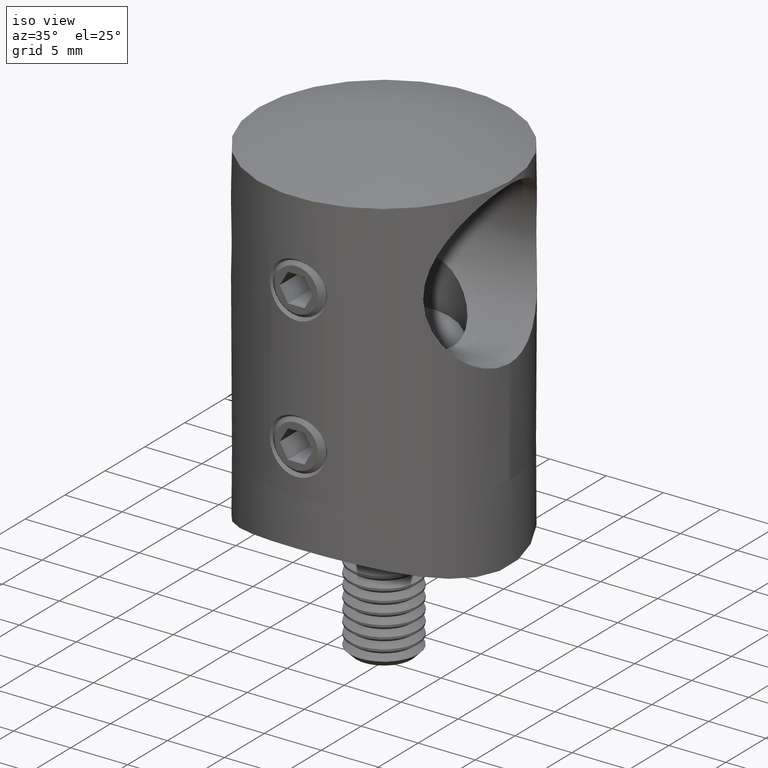
[diagram: clean part render]
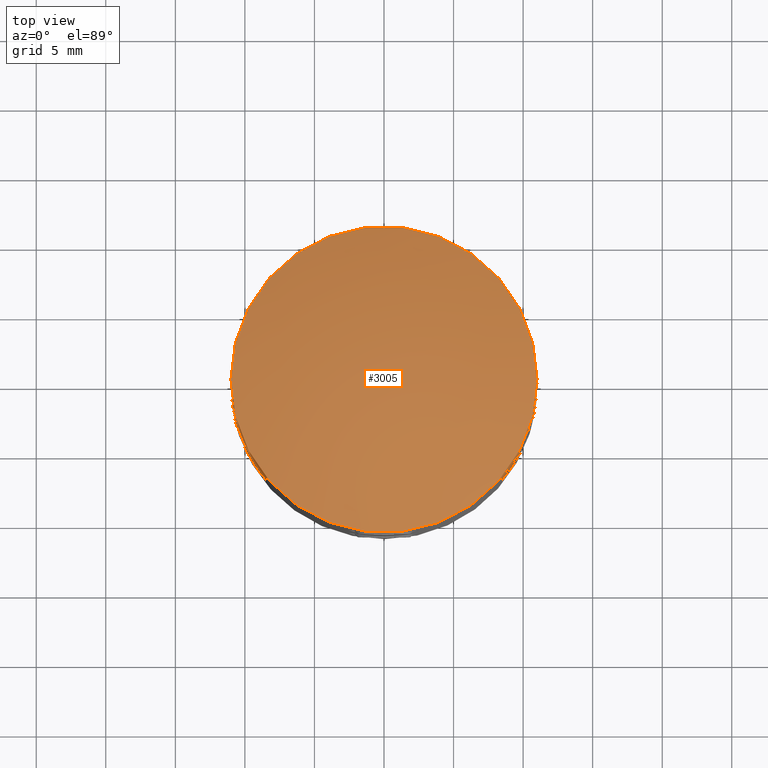
[diagram: tour spotlight — one face highlighted and labeled with its STEP entity id]
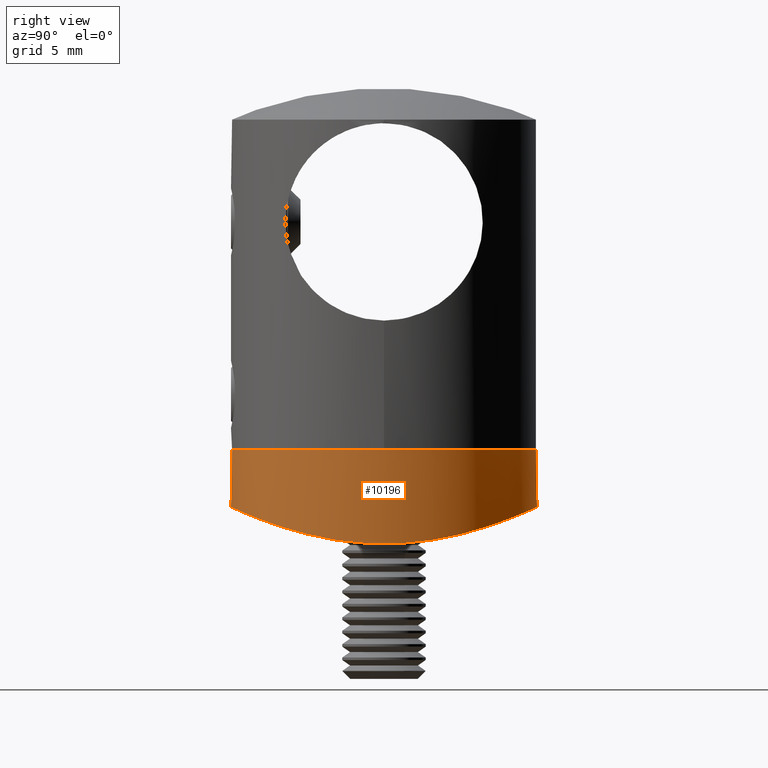
[diagram: tour spotlight — one face highlighted and labeled with its STEP entity id]
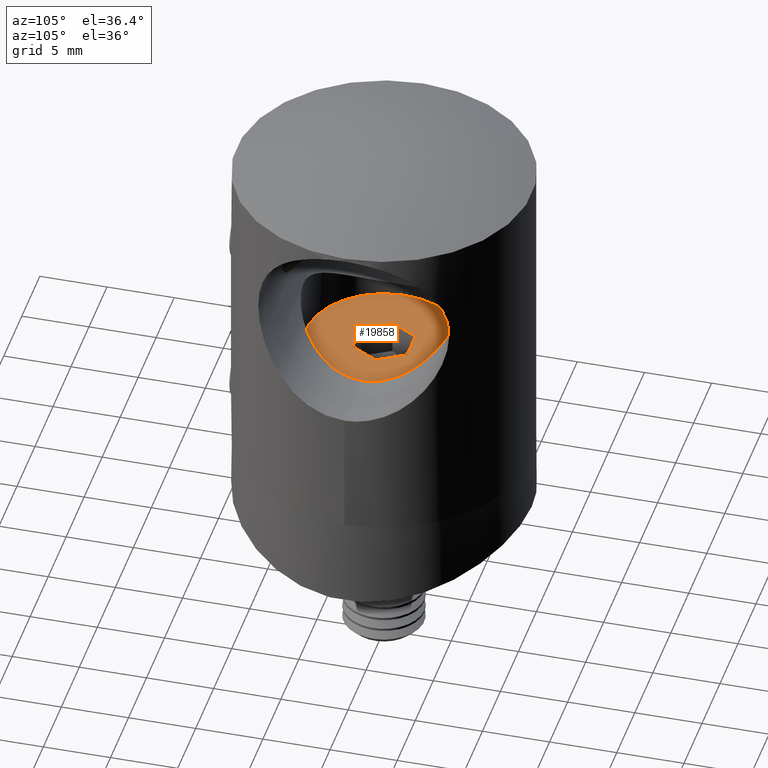
[diagram: tour spotlight — one face highlighted and labeled with its STEP entity id]
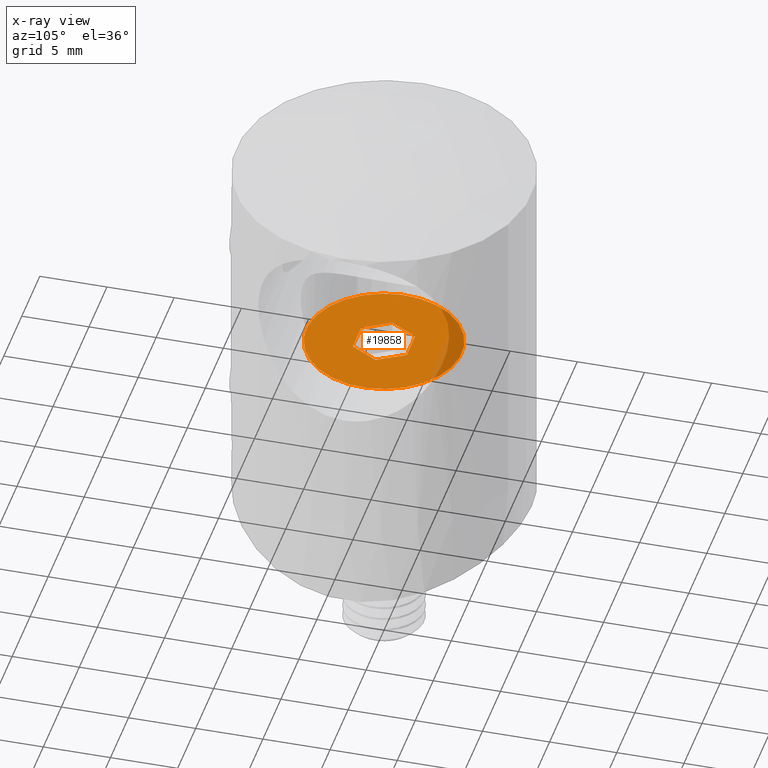
[diagram: x-ray of the same camera — body ghosted, this tour face saturated]
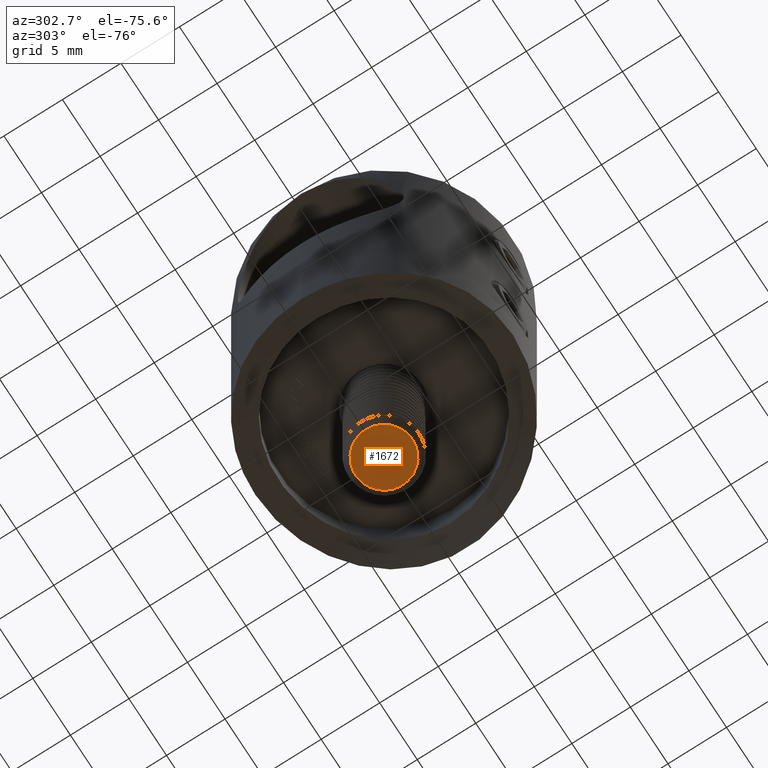
[diagram: tour spotlight — one face highlighted and labeled with its STEP entity id]
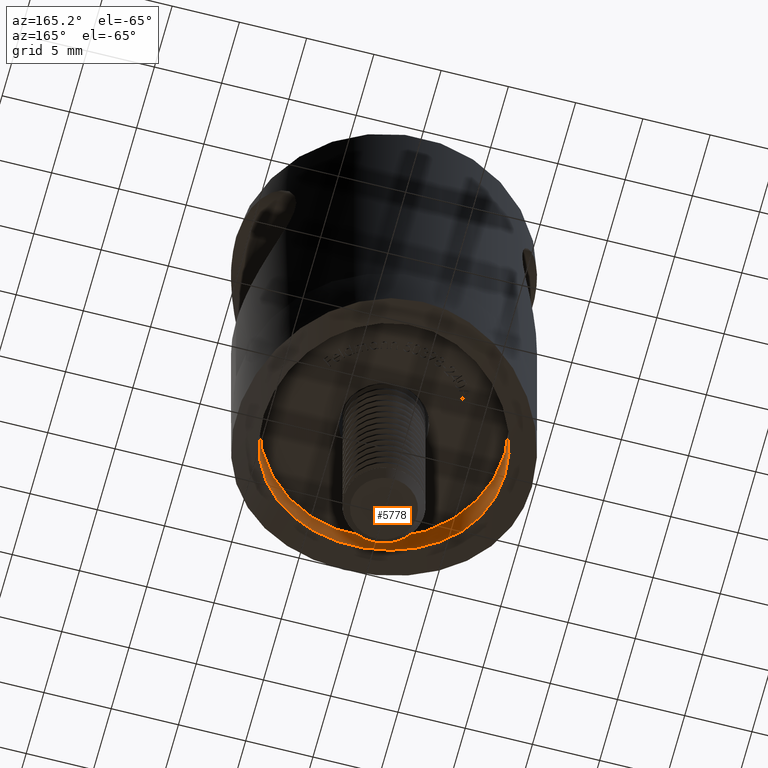
[diagram: tour spotlight — one face highlighted and labeled with its STEP entity id]
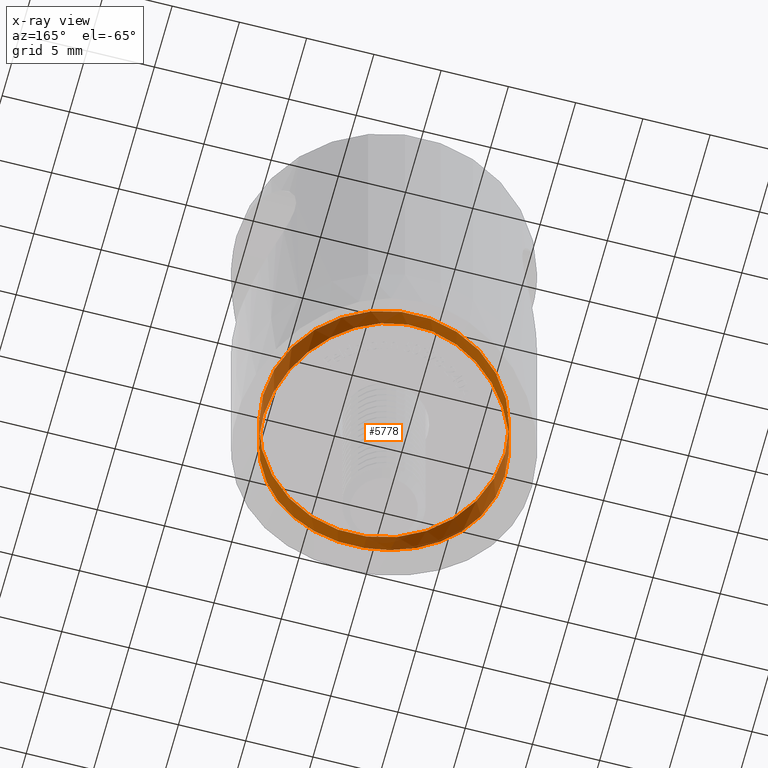
[diagram: x-ray of the same camera — body ghosted, this tour face saturated]
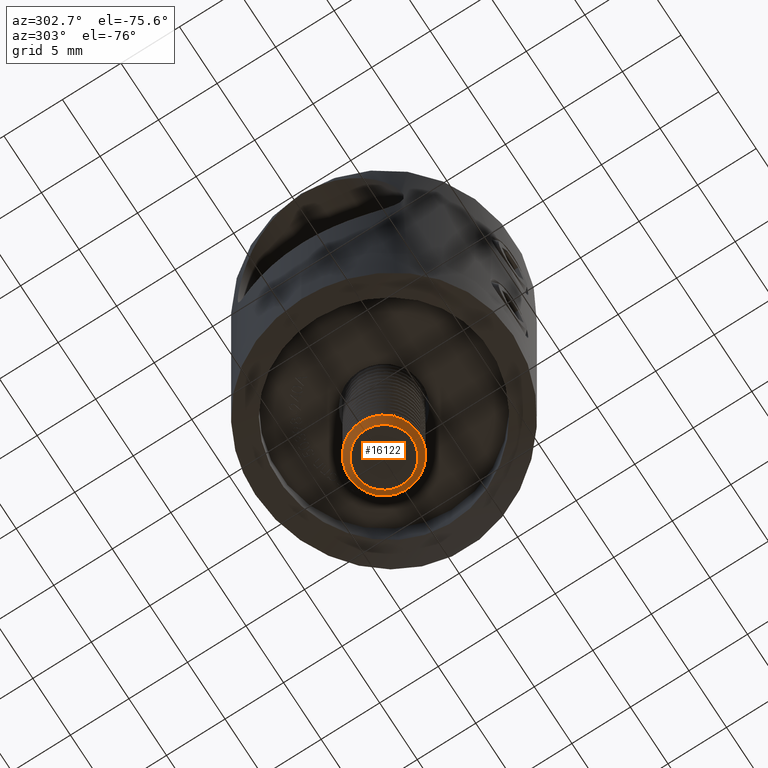
[diagram: tour spotlight — one face highlighted and labeled with its STEP entity id]
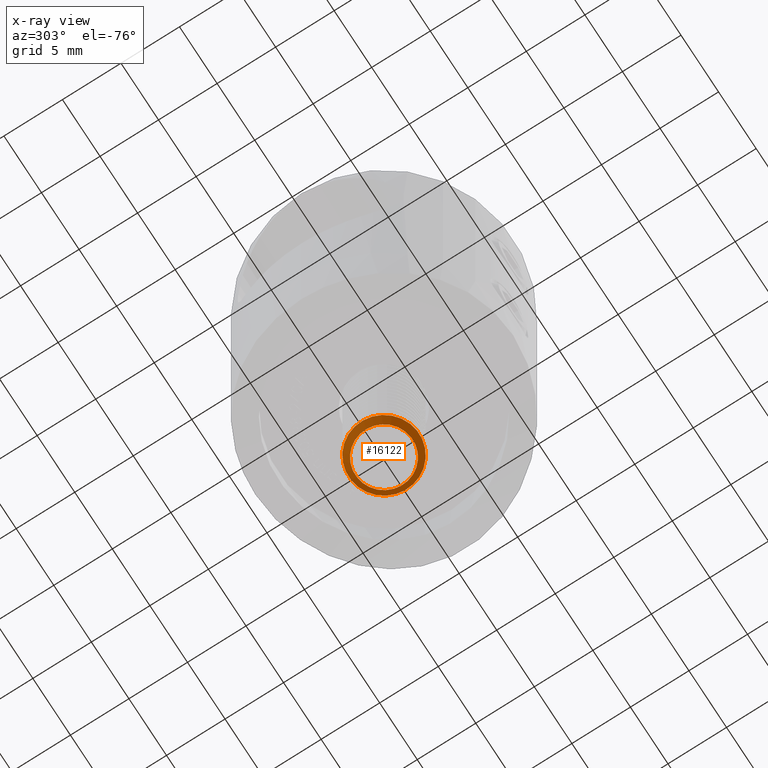
[diagram: x-ray of the same camera — body ghosted, this tour face saturated]
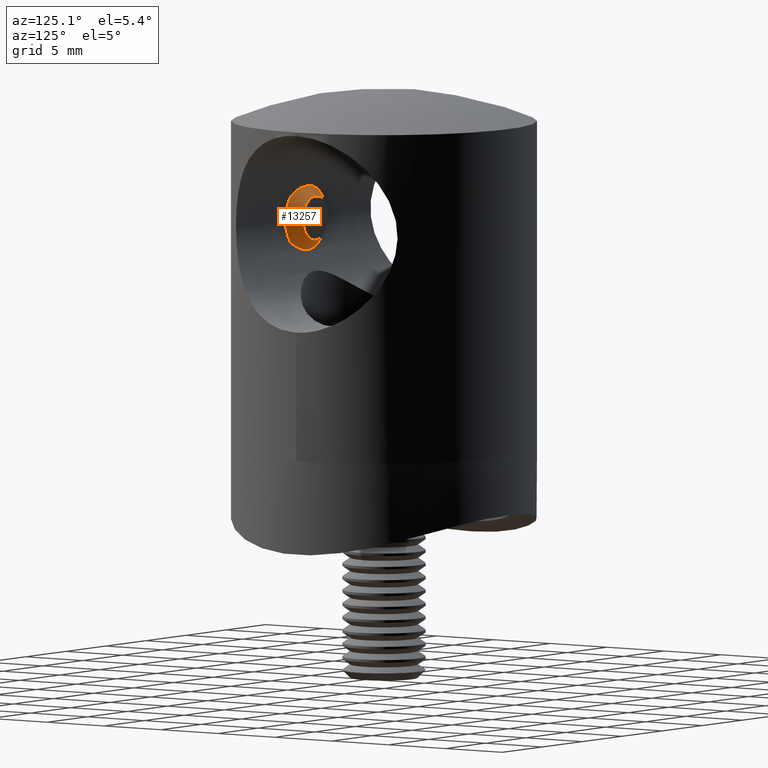
[diagram: tour spotlight — one face highlighted and labeled with its STEP entity id]
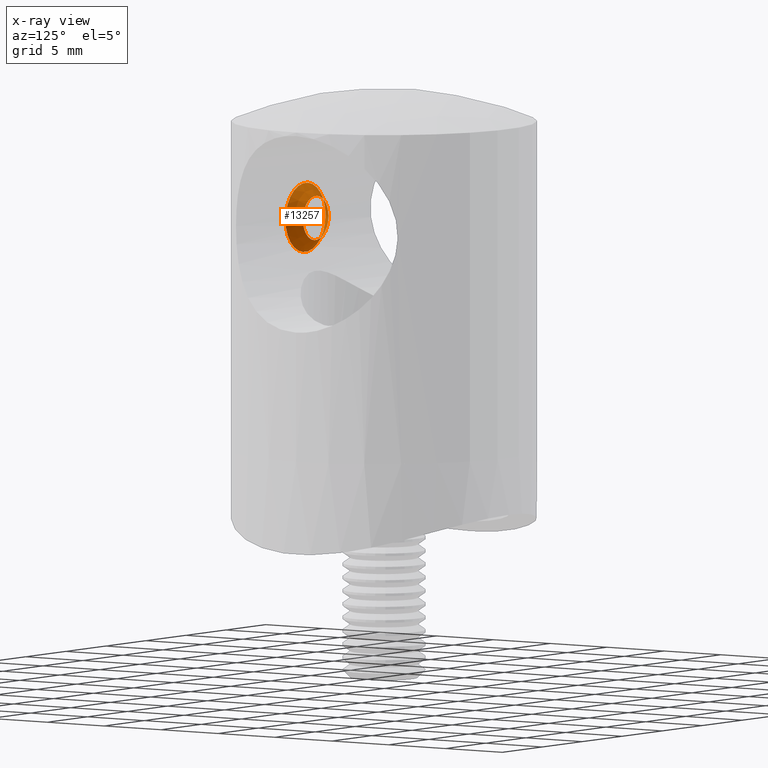
[diagram: x-ray of the same camera — body ghosted, this tour face saturated]
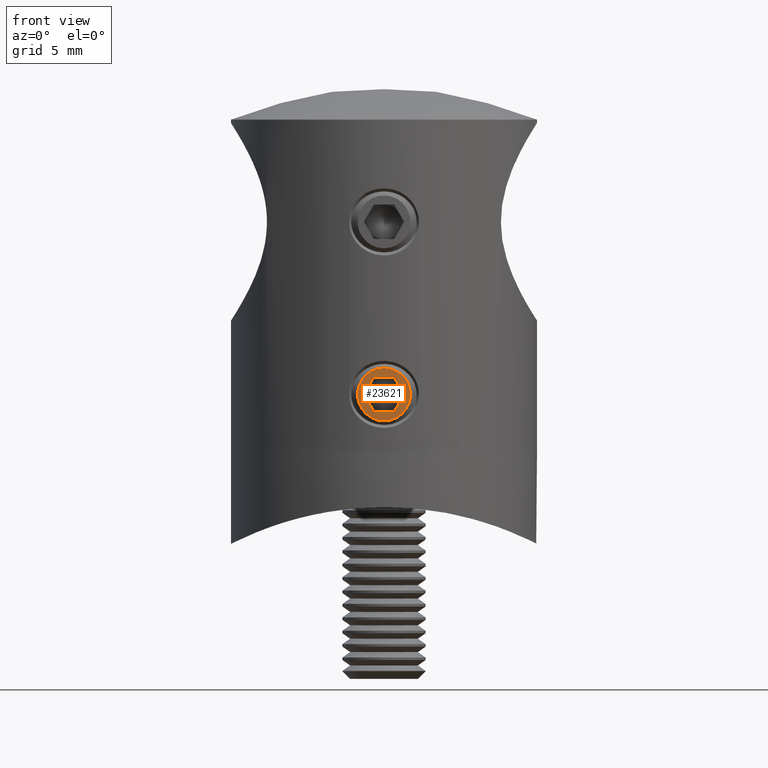
[diagram: tour spotlight — one face highlighted and labeled with its STEP entity id]
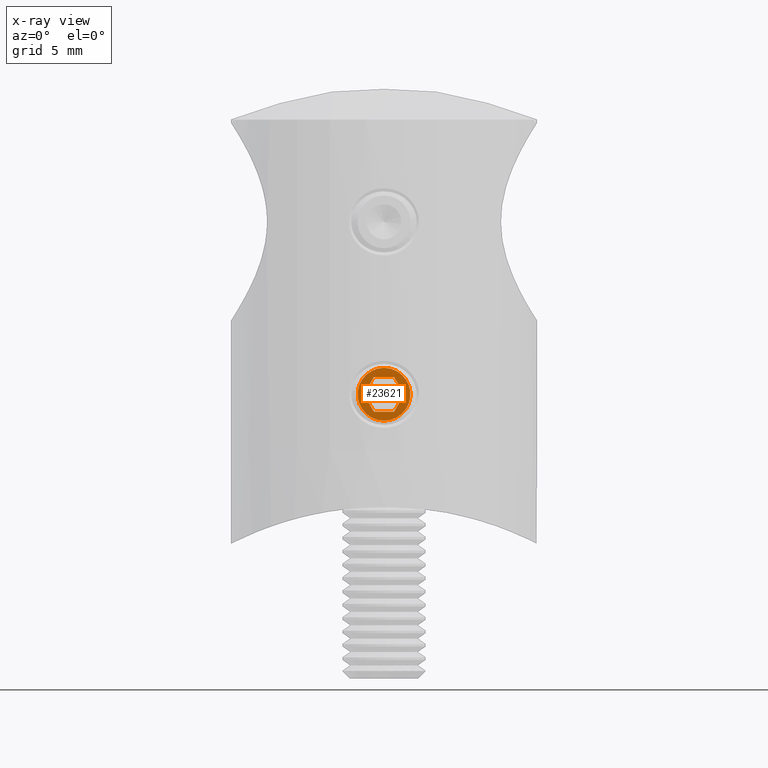
[diagram: x-ray of the same camera — body ghosted, this tour face saturated]
A machine part: a face-by-face anatomy tour. The part has 383 B-rep faces; the first image is the clean iso view, then the 8 largest visible faces are spotlighted one at a time (largest first), each with its STEP entity span.

Face 1 — top view, entity #3005. In plain terms, the highlighted spherical surface has radius 28 mm.
Definition (entity closure, byte-faithful):
#867 = EDGE_LOOP ( 'NONE', ( #15687 ) ) ;
#2638 = AXIS2_PLACEMENT_3D ( 'NONE', #4516, #20819, #19195 ) ;
#3005 = ADVANCED_FACE ( 'NONE', ( #14522 ), #3620, .T. ) ;
#3620 = SPHERICAL_SURFACE ( 'NONE', #3935, 28.00000000000000400 ) ;
#3935 = AXIS2_PLACEMENT_3D ( 'NONE', #22360, #13209, #15039 ) ;
#4172 = VERTEX_POINT ( 'NONE', #6300 ) ;
#4516 = CARTESIAN_POINT ( 'NONE',  ( 0.0000000000000000000, 0.0000000000000000000, 23.74878637916747000 ) ) ;
#6300 = CARTESIAN_POINT ( 'NONE',  ( 10.99999999999999600, 0.0000000000000000000, 23.74878637916747000 ) ) ;
#11031 = CIRCLE ( 'NONE', #2638, 10.99999999999999600 ) ;
#13209 = DIRECTION ( 'NONE',  ( -1.000000000000000000, 0.0000000000000000000, 0.0000000000000000000 ) ) ;
#13605 = EDGE_CURVE ( 'NONE', #4172, #4172, #11031, .T. ) ;
#14522 = FACE_OUTER_BOUND ( 'NONE', #867, .T. ) ;
#15039 = DIRECTION ( 'NONE',  ( 0.0000000000000000000, 1.000000000000000000, 0.0000000000000000000 ) ) ;
#15687 = ORIENTED_EDGE ( 'NONE', *, *, #13605, .T. ) ;
#19195 = DIRECTION ( 'NONE',  ( 1.000000000000000000, 0.0000000000000000000, 0.0000000000000000000 ) ) ;
#20819 = DIRECTION ( 'NONE',  ( -0.0000000000000000000, -0.0000000000000000000, 1.000000000000000000 ) ) ;
#22360 = CARTESIAN_POINT ( 'NONE',  ( 0.0000000000000000000, 0.0000000000000000000, -2.000000000000008900 ) ) ;

Face 2 — right view, entity #10196. In plain terms, the highlighted cylindrical surface (bore or boss wall) has radius 11 mm, axis along (-0, -0, -1).
Definition (entity closure, byte-faithful):
#20 = CARTESIAN_POINT ( 'NONE',  ( 6.430387103793345100, 8.931858968524522900, -4.969817532866156500 ) ) ;
#102 = CARTESIAN_POINT ( 'NONE',  ( 5.855365718019127600, -9.318950189909356800, -4.818581736129233100 ) ) ;
#180 = CARTESIAN_POINT ( 'NONE',  ( 9.876592949303894600, -4.896551791543043200, -6.209823939384729200 ) ) ;
#254 = CARTESIAN_POINT ( 'NONE',  ( -10.61836740494991300, -2.895152067062687400, -6.559290493641392500 ) ) ;
#381 = AXIS2_PLACEMENT_3D ( 'NONE', #8153, #2756, #8072 ) ;
#540 = ORIENTED_EDGE ( 'NONE', *, *, #1620, .T. ) ;
#720 = CARTESIAN_POINT ( 'NONE',  ( -8.930915443111141300, -6.431704276433423600, -5.811022174851143700 ) ) ;
#886 = CARTESIAN_POINT ( 'NONE',  ( -11.00070391701046900, 0.3425920050517579100, -6.750999697781043800 ) ) ;
#1620 = EDGE_CURVE ( 'NONE', #5374, #5374, #8833, .T. ) ;
#1784 = CARTESIAN_POINT ( 'NONE',  ( -2.868514108294105500, -10.62564485086205400, -4.268388887314036300 ) ) ;
#1950 = CARTESIAN_POINT ( 'NONE',  ( 3.604139742779364700, -10.41738169717739000, -4.361059835529935900 ) ) ;
#2030 = CARTESIAN_POINT ( 'NONE',  ( 8.290300556253306800, -7.264440815848068700, -5.561407549665391400 ) ) ;
#2417 = CARTESIAN_POINT ( 'NONE',  ( -10.71534296435754800, 2.512505080016278500, -6.607212948406543200 ) ) ;
#2660 = CARTESIAN_POINT ( 'NONE',  ( -8.716423519987754900, -6.719375433729545900, -5.726576771034943100 ) ) ;
#2740 = CARTESIAN_POINT ( 'NONE',  ( -1.466852744322146900, 10.92647259168840400, -4.133755088964415200 ) ) ;
#2756 = DIRECTION ( 'NONE',  ( -0.0000000000000000000, -0.0000000000000000000, -1.000000000000000000 ) ) ;
#3558 = CARTESIAN_POINT ( 'NONE',  ( 5.545858272137867800, -9.506407200695708300, -4.743189290804292700 ) ) ;
#3639 = CARTESIAN_POINT ( 'NONE',  ( 3.572521488984532500, 10.41007520107788100, -4.363121305259665100 ) ) ;
#3708 = CARTESIAN_POINT ( 'NONE',  ( 1.084202172485504400E-016, 11.00000000000000200, -4.100000000000000500 ) ) ;
#3798 = CARTESIAN_POINT ( 'NONE',  ( 4.911361269540279300, 9.868975922194374900, -4.595063802087429900 ) ) ;
#3875 = CARTESIAN_POINT ( 'NONE',  ( 4.915602178863213800, -9.847089776133577400, -4.603360726907658000 ) ) ;
#4194 = CARTESIAN_POINT ( 'NONE',  ( 0.0000000000000000000, 11.00000000000000000, -4.099999999999999600 ) ) ;
#4258 = CARTESIAN_POINT ( 'NONE',  ( -8.745256739596984000, 6.710233971461283500, -5.734982819002643100 ) ) ;
#4401 = ORIENTED_EDGE ( 'NONE', *, *, #7596, .F. ) ;
#4420 = CARTESIAN_POINT ( 'NONE',  ( -10.99852675633061600, -0.7508881387390133900, -6.749885771269953600 ) ) ;
#4504 = CARTESIAN_POINT ( 'NONE',  ( -10.62705216481736800, 2.862935051191474800, -6.563553041863481300 ) ) ;
#4577 = CARTESIAN_POINT ( 'NONE',  ( -10.70911191687734400, -2.539057930661412500, -6.604124872347297200 ) ) ;
#5374 = VERTEX_POINT ( 'NONE', #20435 ) ;
#5414 = CARTESIAN_POINT ( 'NONE',  ( 0.7473565884534748600, -10.99933731837663200, -4.100301842466392600 ) ) ;
#5579 = CARTESIAN_POINT ( 'NONE',  ( 1.460239697493577800, 10.92665422676079600, -4.133657447046557500 ) ) ;
#5655 = CARTESIAN_POINT ( 'NONE',  ( 9.868128527926108600, 4.912240495255837800, -6.206063174147312000 ) ) ;
#5730 = CARTESIAN_POINT ( 'NONE',  ( -0.7277201965022432900, -11.00065391826050700, -4.099702149126820800 ) ) ;
#6131 = CARTESIAN_POINT ( 'NONE',  ( -5.540353854638258500, 9.509623176622014300, -4.741887871326858000 ) ) ;
#6207 = CARTESIAN_POINT ( 'NONE',  ( -9.866918231013452000, -4.914726412409633500, -6.205517087826901700 ) ) ;
#6291 = CARTESIAN_POINT ( 'NONE',  ( -7.264663726758620000, -8.267492795645566200, -5.216770539457563400 ) ) ;
#6453 = CARTESIAN_POINT ( 'NONE',  ( -10.98308985131462000, 0.7115934421855739700, -6.741958227302602000 ) ) ;
#7272 = CARTESIAN_POINT ( 'NONE',  ( 1.475701006764952500, -10.92525667685501400, -4.134308347963729700 ) ) ;
#7353 = CARTESIAN_POINT ( 'NONE',  ( 6.745604653960873200, -8.718335803782917300, -5.053103741118685700 ) ) ;
#7431 = CARTESIAN_POINT ( 'NONE',  ( 10.40516368226898600, 3.586650783726629000, -6.456213165125378200 ) ) ;
#7515 = CARTESIAN_POINT ( 'NONE',  ( 10.61878898511370800, 2.893581792319689100, -6.559497554266020100 ) ) ;
#7594 = CARTESIAN_POINT ( 'NONE',  ( 10.28238546720194100, 3.924291775033997600, -6.397810133528087900 ) ) ;
#7596 = EDGE_CURVE ( 'NONE', #7666, #7666, #15829, .T. ) ;
#7666 = VERTEX_POINT ( 'NONE', #4194 ) ;
#7981 = CARTESIAN_POINT ( 'NONE',  ( 1.084202172485504400E-016, 11.00000000000000200, -4.100000000000000500 ) ) ;
#8072 = DIRECTION ( 'NONE',  ( -1.000000000000000000, 0.0000000000000000000, 0.0000000000000000000 ) ) ;
#8142 = CARTESIAN_POINT ( 'NONE',  ( -10.29295847912959300, 3.896917570490445700, -6.402779562983477400 ) ) ;
#8153 = CARTESIAN_POINT ( 'NONE',  ( 0.0000000000000000000, 0.0000000000000000000, 0.0000000000000000000 ) ) ;
#8223 = CARTESIAN_POINT ( 'NONE',  ( -10.28160978047289800, -3.926340929373009400, -6.397444065218972600 ) ) ;
#8297 = CARTESIAN_POINT ( 'NONE',  ( -6.741267480389036700, 8.721727892873946800, -5.051827401943363300 ) ) ;
#8350 = DIRECTION ( 'NONE',  ( -0.0000000000000000000, -0.0000000000000000000, -1.000000000000000000 ) ) ;
#8833 = CIRCLE ( 'NONE', #381, 11.00000000000000000 ) ;
#9114 = CARTESIAN_POINT ( 'NONE',  ( 0.7372117133655116100, 11.00000000000000400, -4.100000000000000500 ) ) ;
#9187 = CARTESIAN_POINT ( 'NONE',  ( 10.91135686389293200, -1.441101214652544100, -6.705478390493702500 ) ) ;
#9352 = CARTESIAN_POINT ( 'NONE',  ( 10.41683527128108500, -3.552468401192897800, -6.461798316812489100 ) ) ;
#9429 = CARTESIAN_POINT ( 'NONE',  ( 2.524794415566042000, 10.71244282600650000, -4.229699050896370800 ) ) ;
#9805 = CARTESIAN_POINT ( 'NONE',  ( -8.027113573993681000, -7.529308984410178600, -5.471551297371718200 ) ) ;
#9968 = CARTESIAN_POINT ( 'NONE',  ( -0.7372117133655113900, 11.00000000000000000, -4.100000000000000500 ) ) ;
#10045 = CARTESIAN_POINT ( 'NONE',  ( -10.85744416824285200, 1.801988555569571600, -6.678150001960482000 ) ) ;
#10132 = CARTESIAN_POINT ( 'NONE',  ( -9.529662586467784600, -5.540560729208611000, -6.055542652586228600 ) ) ;
#10196 = ADVANCED_FACE ( 'NONE', ( #14529, #21150 ), #11386, .T. ) ;
#10948 = CARTESIAN_POINT ( 'NONE',  ( 8.747644661512161700, -6.707078174671706500, -5.735918676546444500 ) ) ;
#11028 = CARTESIAN_POINT ( 'NONE',  ( 2.876291431198781700, 10.62353627960885100, -4.269323796662688700 ) ) ;
#11109 = CARTESIAN_POINT ( 'NONE',  ( 10.92542246693628300, 1.470415726918199400, -6.712044220759203500 ) ) ;
#11184 = CARTESIAN_POINT ( 'NONE',  ( 10.29373922574088800, -3.894837568605289400, -6.403148510146072800 ) ) ;
#11265 = CARTESIAN_POINT ( 'NONE',  ( 8.267843408091849300, 7.264205400818201300, -5.558078746421775100 ) ) ;
#11386 = CYLINDRICAL_SURFACE ( 'NONE', #20161, 11.00000000000000000 ) ;
#12712 = CARTESIAN_POINT ( 'NONE',  ( 8.718833033539631600, 6.716238922139558200, -5.727511786381569400 ) ) ;
#12793 = CARTESIAN_POINT ( 'NONE',  ( -2.516771802399748700, -10.71433719204585000, -4.228853593830872400 ) ) ;
#12869 = CARTESIAN_POINT ( 'NONE',  ( 3.915353489643147000, 10.28589062110507700, -4.417118280347359900 ) ) ;
#12950 = CARTESIAN_POINT ( 'NONE',  ( 2.914404154908519600, -10.63227046958382400, -4.265619129539510700 ) ) ;
#13031 = CARTESIAN_POINT ( 'NONE',  ( 5.539466972768920500, 9.530280027920332100, -4.735878674968243600 ) ) ;
#13111 = CARTESIAN_POINT ( 'NONE',  ( -7.526947822376011600, -8.029327655024582500, -5.301419780141284100 ) ) ;
#13576 = CARTESIAN_POINT ( 'NONE',  ( -4.909570765580929800, 9.850105009272978100, -4.602104288401741300 ) ) ;
#13654 = CARTESIAN_POINT ( 'NONE',  ( -10.91125768141332700, 1.441902811846360800, -6.705428076010765200 ) ) ;
#13730 = CARTESIAN_POINT ( 'NONE',  ( -6.714799822728051200, -8.719990798712176500, -5.050507294650302900 ) ) ;
#14529 = FACE_OUTER_BOUND ( 'NONE', #20523, .T. ) ;
#14620 = CARTESIAN_POINT ( 'NONE',  ( -3.565228295584622800, -10.41258127874622700, -4.362028299791797200 ) ) ;
#14856 = CARTESIAN_POINT ( 'NONE',  ( 6.719195962510457100, 8.716594843496384500, -5.051783569162509500 ) ) ;
#15247 = CARTESIAN_POINT ( 'NONE',  ( -9.875379690077004100, 4.899052887441254000, -6.209275958273811300 ) ) ;
#15410 = CARTESIAN_POINT ( 'NONE',  ( -4.586925025805655300, 10.00440817799939500, -4.537239825038970900 ) ) ;
#15829 = B_SPLINE_CURVE_WITH_KNOTS ( 'NONE', 3,
 ( #3708, #9114, #5579, #9429, #11028, #3639, #12869, #3798, #13031, #20, #14856, #18396, #18547, #16634, #11265, #12712, #16558, #22101, #5655, #7594, #7431, #7515, #20256, #11109, #20332, #20175, #18236, #9187, #22184, #21944, #20087, #9352, #11184, #180, #18314, #10948, #2030, #16401, #7353, #102, #3558, #3875, #20413, #1950, #12950, #7272, #5414, #5730, #23794, #12793, #1784, #14620, #16480, #22024, #22964, #19265, #13730, #6291, #13111, #9805, #17185, #2660, #720, #10132, #6207, #8223, #17425, #254, #4577, #19181, #4420, #886, #6453, #13654, #10045, #2417, #4504, #17102, #8142, #15247, #17273, #4258, #17352, #19102, #8297, #20960, #6131, #13576, #15410, #18934, #21126, #2740, #9968, #7981 ),
 .UNSPECIFIED., .T., .F.,
 ( 4, 2, 2, 2, 2, 2, 2, 2, 2, 2, 2, 2, 2, 2, 2, 2, 2, 2, 2, 2, 2, 2, 2, 2, 2, 2, 2, 2, 2, 2, 2, 2, 2, 2, 2, 2, 2, 2, 2, 2, 2, 2, 2, 2, 2, 2, 4 ),
 ( 0.0000000000000000000, 0.002178242910254783800, 0.003267364365382174600, 0.004356485820509565900, 0.006534728730764347500, 0.007623850185891738400, 0.008712971641019128300, 0.009802093096146520900, 0.01089121455127391300, 0.01306945746152869300, 0.01415857891665608200, 0.01524770037178347300, 0.01742594328203825300, 0.01851506473716564200, 0.01960418619229303100, 0.02069330764742042400, 0.02178242910254781600, 0.02396067201280259100, 0.02613891492305737300, 0.02831715783331215400, 0.02940627928843954700, 0.03049540074356694000, 0.03267364365382172100, 0.03485188656407651300, 0.03703012947433130500, 0.03811925092945869800, 0.03920837238458609000, 0.04138661529484088200, 0.04247573674996828900, 0.04356485820509568100, 0.04465397966022306000, 0.04574310111535045300, 0.04792134402560523800, 0.04901046548073263000, 0.05009958693586002300, 0.05227782984611480800, 0.05336695130124220100, 0.05445607275636959300, 0.05554519421149698600, 0.05663431566662437800, 0.05881255857687917000, 0.06099080148713395500, 0.06316904439738875400, 0.06425816585251614700, 0.06534728730764354000, 0.06752553021789832500, 0.06970377312815311000 ),
 .UNSPECIFIED. ) ;
#16401 = CARTESIAN_POINT ( 'NONE',  ( 7.290707075603656100, -8.267210776175723200, -5.220738157115473400 ) ) ;
#16480 = CARTESIAN_POINT ( 'NONE',  ( -3.908413871923572800, -10.28853765117940900, -4.415975103855082300 ) ) ;
#16558 = CARTESIAN_POINT ( 'NONE',  ( 8.933123202535501400, 6.428625713320006000, -5.811903161856983000 ) ) ;
#16634 = CARTESIAN_POINT ( 'NONE',  ( 8.030195500825493900, 7.526012631049382200, -5.472640476603284100 ) ) ;
#17102 = CARTESIAN_POINT ( 'NONE',  ( -10.41619455275248500, 3.554367153277743900, -6.461491321776340300 ) ) ;
#17185 = CARTESIAN_POINT ( 'NONE',  ( -8.264994150257553700, -7.267456012623145300, -5.557038434195357400 ) ) ;
#17273 = CARTESIAN_POINT ( 'NONE',  ( -9.537197385377799800, 5.527080732680000000, -6.058844551614365400 ) ) ;
#17352 = CARTESIAN_POINT ( 'NONE',  ( -8.287454945787276400, 7.267723683256857500, -5.560356767623069600 ) ) ;
#17425 = CARTESIAN_POINT ( 'NONE',  ( -10.40451675480509400, -3.588546075627322200, -6.455903635738449600 ) ) ;
#17561 = CARTESIAN_POINT ( 'NONE',  ( 0.0000000000000000000, 0.0000000000000000000, -2.100000000000000100 ) ) ;
#18236 = CARTESIAN_POINT ( 'NONE',  ( 10.98310959578544100, -0.7111855799031482400, -6.741968393163617200 ) ) ;
#18314 = CARTESIAN_POINT ( 'NONE',  ( 9.538757656813460900, -5.524335899438257000, -6.059523499308427900 ) ) ;
#18396 = CARTESIAN_POINT ( 'NONE',  ( 7.268501839163962000, 8.264109211666708500, -5.217984869563292000 ) ) ;
#18547 = CARTESIAN_POINT ( 'NONE',  ( 7.530524187717796600, 8.025964824392776400, -5.302595961683456600 ) ) ;
#18934 = CARTESIAN_POINT ( 'NONE',  ( -3.596995005784352300, 10.41987925390194600, -4.359967933075471300 ) ) ;
#19102 = CARTESIAN_POINT ( 'NONE',  ( -7.286900198823986800, 8.270598678874801400, -5.219522258898293500 ) ) ;
#19181 = CARTESIAN_POINT ( 'NONE',  ( -10.92534176227381900, -1.471217275371408800, -6.712001956122559700 ) ) ;
#19265 = CARTESIAN_POINT ( 'NONE',  ( -6.425701906187426500, -8.935237515431518700, -4.968520578984717800 ) ) ;
#20087 = CARTESIAN_POINT ( 'NONE',  ( 10.62746186526367800, -2.861388319128643300, -6.563754498331739700 ) ) ;
#20161 = AXIS2_PLACEMENT_3D ( 'NONE', #17561, #8350, #21181 ) ;
#20175 = CARTESIAN_POINT ( 'NONE',  ( 11.00070343088892400, -0.3423925993475632800, -6.750999449061152000 ) ) ;
#20256 = CARTESIAN_POINT ( 'NONE',  ( 10.70943195267321000, 2.537678441767839300, -6.604283540190819800 ) ) ;
#20332 = CARTESIAN_POINT ( 'NONE',  ( 10.99852774464228100, 0.7504812563760635500, -6.749886276931105700 ) ) ;
#20413 = CARTESIAN_POINT ( 'NONE',  ( 4.593227796435100700, -10.00150861558385200, -4.538463677424142700 ) ) ;
#20435 = CARTESIAN_POINT ( 'NONE',  ( -11.00000000000000000, 0.0000000000000000000, 0.0000000000000000000 ) ) ;
#20523 = EDGE_LOOP ( 'NONE', ( #4401 ) ) ;
#20960 = CARTESIAN_POINT ( 'NONE',  ( -5.850127406137173300, 9.322248414509996200, -4.817269490842363700 ) ) ;
#21126 = CARTESIAN_POINT ( 'NONE',  ( -2.906495036939129600, 10.63446034694245800, -4.264645881646374400 ) ) ;
#21150 = FACE_OUTER_BOUND ( 'NONE', #22461, .T. ) ;
#21181 = DIRECTION ( 'NONE',  ( -1.000000000000000000, 0.0000000000000000000, 0.0000000000000000000 ) ) ;
#21944 = CARTESIAN_POINT ( 'NONE',  ( 10.71565638503099500, -2.511139484501886600, -6.607368442393177300 ) ) ;
#22024 = CARTESIAN_POINT ( 'NONE',  ( -4.905336668675545300, -9.872005679843932000, -4.593797026062112800 ) ) ;
#22101 = CARTESIAN_POINT ( 'NONE',  ( 9.531225877889175600, 5.537816186838021800, -6.056222657174747500 ) ) ;
#22184 = CARTESIAN_POINT ( 'NONE',  ( 10.85760233114000800, -1.800995527896463800, -6.678229926146595800 ) ) ;
#22461 = EDGE_LOOP ( 'NONE', ( #540 ) ) ;
#22964 = CARTESIAN_POINT ( 'NONE',  ( -5.534000072706375800, -9.533483150072068900, -4.734578267259570900 ) ) ;
#23794 = CARTESIAN_POINT ( 'NONE',  ( -1.451469659101266400, -10.92784896077696800, -4.133113888468627400 ) ) ;

Face 3 — auxiliary view, entity #19858. An x-ray twin of the same camera follows (body ghosted, this face saturated) — the face is partly hidden behind the body. In plain terms, the highlighted planar face has unit normal (-0, 0, 1).
Definition (entity closure, byte-faithful):
#1630 = EDGE_LOOP ( 'NONE', ( #4248 ) ) ;
#3847 = VECTOR ( 'NONE', #6472, 1000.000000000000000 ) ;
#4035 = EDGE_CURVE ( 'NONE', #17817, #6049, #4729, .T. ) ;
#4159 = PLANE ( 'NONE',  #13740 ) ;
#4248 = ORIENTED_EDGE ( 'NONE', *, *, #4526, .T. ) ;
#4526 = EDGE_CURVE ( 'NONE', #23726, #23726, #19663, .T. ) ;
#4629 = LINE ( 'NONE', #8138, #18691 ) ;
#4729 = LINE ( 'NONE', #7494, #17650 ) ;
#4762 = CARTESIAN_POINT ( 'NONE',  ( 0.0000000000000000000, 1.160474041071147600, 2.009999999999999800 ) ) ;
#4954 = DIRECTION ( 'NONE',  ( 0.0000000000000000000, 0.0000000000000000000, 1.000000000000000000 ) ) ;
#5134 = EDGE_CURVE ( 'NONE', #18658, #13369, #21370, .T. ) ;
#5821 = DIRECTION ( 'NONE',  ( 0.0000000000000000000, 0.5000000000000004400, -0.8660254037844383700 ) ) ;
#5835 = CARTESIAN_POINT ( 'NONE',  ( -0.0000000000000000000, -1.160474041071147200, -2.009999999999999800 ) ) ;
#5922 = ORIENTED_EDGE ( 'NONE', *, *, #4035, .T. ) ;
#6049 = VERTEX_POINT ( 'NONE', #22895 ) ;
#6178 = CARTESIAN_POINT ( 'NONE',  ( 0.0000000000000000000, 0.0000000000000000000, 0.0000000000000000000 ) ) ;
#6472 = DIRECTION ( 'NONE',  ( 0.0000000000000000000, 1.000000000000000000, 1.868550495941741000E-016 ) ) ;
#7494 = CARTESIAN_POINT ( 'NONE',  ( 0.0000000000000000000, -1.160474041071147200, 2.009999999999999800 ) ) ;
#7639 = VECTOR ( 'NONE', #23063, 1000.000000000000000 ) ;
#8138 = CARTESIAN_POINT ( 'NONE',  ( 0.0000000000000000000, 2.320948082142296100, -3.233603273357869300E-017 ) ) ;
#8188 = ORIENTED_EDGE ( 'NONE', *, *, #5134, .T. ) ;
#9336 = VECTOR ( 'NONE', #22231, 1000.000000000000200 ) ;
#11430 = CARTESIAN_POINT ( 'NONE',  ( 0.0000000000000000000, 0.0000000000000000000, 5.785000000000000100 ) ) ;
#11456 = FACE_OUTER_BOUND ( 'NONE', #1630, .T. ) ;
#11574 = CARTESIAN_POINT ( 'NONE',  ( 0.0000000000000000000, 1.160474041071147600, 2.009999999999999800 ) ) ;
#11751 = CARTESIAN_POINT ( 'NONE',  ( 0.0000000000000000000, 1.160474041071147600, -2.009999999999999300 ) ) ;
#11816 = VECTOR ( 'NONE', #5821, 1000.000000000000000 ) ;
#11972 = DIRECTION ( 'NONE',  ( 0.0000000000000000000, -0.5000000000000003300, 0.8660254037844383700 ) ) ;
#11995 = EDGE_CURVE ( 'NONE', #16631, #17817, #21692, .T. ) ;
#12108 = ORIENTED_EDGE ( 'NONE', *, *, #16748, .T. ) ;
#12775 = EDGE_CURVE ( 'NONE', #13369, #22098, #19955, .T. ) ;
#13369 = VERTEX_POINT ( 'NONE', #11751 ) ;
#13467 = ORIENTED_EDGE ( 'NONE', *, *, #16497, .T. ) ;
#13740 = AXIS2_PLACEMENT_3D ( 'NONE', #6178, #16995, #22783 ) ;
#15121 = ORIENTED_EDGE ( 'NONE', *, *, #12775, .T. ) ;
#15305 = EDGE_LOOP ( 'NONE', ( #5922, #13467, #8188, #15121, #12108, #18874 ) ) ;
#15749 = FACE_BOUND ( 'NONE', #15305, .T. ) ;
#15944 = CARTESIAN_POINT ( 'NONE',  ( 0.0000000000000000000, 0.0000000000000000000, 0.0000000000000000000 ) ) ;
#16497 = EDGE_CURVE ( 'NONE', #6049, #18658, #16711, .T. ) ;
#16631 = VERTEX_POINT ( 'NONE', #11574 ) ;
#16711 = LINE ( 'NONE', #18626, #11816 ) ;
#16748 = EDGE_CURVE ( 'NONE', #22098, #16631, #4629, .T. ) ;
#16995 = DIRECTION ( 'NONE',  ( -1.000000000000000000, 0.0000000000000000000, -0.0000000000000000000 ) ) ;
#17650 = VECTOR ( 'NONE', #18676, 1000.000000000000000 ) ;
#17817 = VERTEX_POINT ( 'NONE', #20979 ) ;
#18626 = CARTESIAN_POINT ( 'NONE',  ( -0.0000000000000000000, -2.320948082142296100, -2.915072610455690300E-018 ) ) ;
#18658 = VERTEX_POINT ( 'NONE', #5835 ) ;
#18676 = DIRECTION ( 'NONE',  ( -0.0000000000000000000, -0.5000000000000004400, -0.8660254037844383700 ) ) ;
#18691 = VECTOR ( 'NONE', #11972, 1000.000000000000200 ) ;
#18874 = ORIENTED_EDGE ( 'NONE', *, *, #11995, .T. ) ;
#19487 = CARTESIAN_POINT ( 'NONE',  ( 0.0000000000000000000, 2.320948082142296100, -3.233603273357869300E-017 ) ) ;
#19663 = CIRCLE ( 'NONE', #22710, 5.785000000000000100 ) ;
#19858 = ADVANCED_FACE ( 'NONE', ( #11456, #15749 ), #4159, .T. ) ;
#19955 = LINE ( 'NONE', #21998, #9336 ) ;
#20979 = CARTESIAN_POINT ( 'NONE',  ( 0.0000000000000000000, -1.160474041071147200, 2.009999999999999800 ) ) ;
#21220 = CARTESIAN_POINT ( 'NONE',  ( -0.0000000000000000000, -1.160474041071147200, -2.009999999999999800 ) ) ;
#21370 = LINE ( 'NONE', #21220, #3847 ) ;
#21416 = DIRECTION ( 'NONE',  ( -1.000000000000000000, -0.0000000000000000000, -0.0000000000000000000 ) ) ;
#21692 = LINE ( 'NONE', #4762, #7639 ) ;
#21998 = CARTESIAN_POINT ( 'NONE',  ( 0.0000000000000000000, 1.160474041071147600, -2.009999999999999300 ) ) ;
#22098 = VERTEX_POINT ( 'NONE', #19487 ) ;
#22231 = DIRECTION ( 'NONE',  ( 0.0000000000000000000, 0.5000000000000003300, 0.8660254037844383700 ) ) ;
#22710 = AXIS2_PLACEMENT_3D ( 'NONE', #15944, #21416, #4954 ) ;
#22783 = DIRECTION ( 'NONE',  ( -0.0000000000000000000, 0.0000000000000000000, 1.000000000000000000 ) ) ;
#22895 = CARTESIAN_POINT ( 'NONE',  ( 0.0000000000000000000, -2.320948082142296500, 0.0000000000000000000 ) ) ;
#23063 = DIRECTION ( 'NONE',  ( 0.0000000000000000000, -1.000000000000000000, 0.0000000000000000000 ) ) ;
#23726 = VERTEX_POINT ( 'NONE', #11430 ) ;

Face 4 — auxiliary view, entity #1672. In plain terms, the highlighted planar face has unit normal (0, 0, -1).
Definition (entity closure, byte-faithful):
#577 = PLANE ( 'NONE',  #4073 ) ;
#1672 = ADVANCED_FACE ( 'NONE', ( #13688 ), #577, .T. ) ;
#2180 = CIRCLE ( 'NONE', #3478, 2.445500000000000000 ) ;
#2497 = ORIENTED_EDGE ( 'NONE', *, *, #2664, .F. ) ;
#2664 = EDGE_CURVE ( 'NONE', #23157, #23157, #2180, .T. ) ;
#3478 = AXIS2_PLACEMENT_3D ( 'NONE', #17701, #17465, #8496 ) ;
#4073 = AXIS2_PLACEMENT_3D ( 'NONE', #9817, #15578, #11824 ) ;
#7452 = CARTESIAN_POINT ( 'NONE',  ( 25.00000000000000000, 0.0000000000000000000, 2.445500000000000000 ) ) ;
#8496 = DIRECTION ( 'NONE',  ( 0.0000000000000000000, 0.0000000000000000000, 1.000000000000000000 ) ) ;
#9817 = CARTESIAN_POINT ( 'NONE',  ( 25.00000000000000000, 2.445500000000000000, 0.0000000000000000000 ) ) ;
#11014 = EDGE_LOOP ( 'NONE', ( #2497 ) ) ;
#11824 = DIRECTION ( 'NONE',  ( 0.0000000000000000000, 0.0000000000000000000, -1.000000000000000000 ) ) ;
#13688 = FACE_OUTER_BOUND ( 'NONE', #11014, .T. ) ;
#15578 = DIRECTION ( 'NONE',  ( 1.000000000000000000, 0.0000000000000000000, 0.0000000000000000000 ) ) ;
#17465 = DIRECTION ( 'NONE',  ( -1.000000000000000000, -0.0000000000000000000, -0.0000000000000000000 ) ) ;
#17701 = CARTESIAN_POINT ( 'NONE',  ( 25.00000000000000000, 0.0000000000000000000, 0.0000000000000000000 ) ) ;
#23157 = VERTEX_POINT ( 'NONE', #7452 ) ;

Face 5 — auxiliary view, entity #5778. An x-ray twin of the same camera follows (body ghosted, this face saturated) — the face is partly hidden behind the body. In plain terms, the highlighted cylindrical surface (bore or boss wall) has radius 9 mm, axis along (-0, -0, -1).
Definition (entity closure, byte-faithful):
#483 = CARTESIAN_POINT ( 'NONE',  ( -8.999999999999994700, -0.6005012153812484500, -5.839678717162481500 ) ) ;
#517 = B_SPLINE_CURVE_WITH_KNOTS ( 'NONE', 3,
 ( #9503, #483, #7746, #13035, #18621, #4107, #5658, #3878, #18773, #16939, #5733, #7601, #22263, #20640, #20417, #9433, #9653, #11490, #16793, #13114, #5818, #7671, #20879, #17346, #21039, #6284, #2653, #11646, #10041, #19016, #558, #15241, #11721, #22883, #8135, #7900, #13650, #13415, #2488, #880, #6037, #15561, #2411, #19174, #17020, #4332, #22727, #15317, #17177, #19097, #15479, #20798, #11887, #17098, #632, #13724, #18850, #20955, #715, #22644, #13567, #9962, #9883, #4497, #20721, #6365, #13487, #2567, #4252, #2734, #6203, #8218, #8048, #11569, #9720, #22570, #18930, #15405, #4412, #22807, #6123, #17267, #7976, #11804, #795, #9800, #12288, #21443, #21275, #10435, #6678 ),
 .UNSPECIFIED., .T., .F.,
 ( 4, 2, 2, 2, 2, 2, 2, 2, 2, 2, 2, 2, 2, 2, 2, 2, 2, 2, 2, 2, 2, 2, 2, 1, 2, 2, 2, 2, 2, 2, 2, 2, 2, 2, 2, 2, 2, 2, 2, 2, 2, 2, 2, 2, 2, 4 ),
 ( 0.0000000000000000000, 0.001774529102768363400, 0.002661793654152544600, 0.003549058205536726000, 0.005323587308305088300, 0.006210851859689271000, 0.007098116411073453700, 0.008872645513841814800, 0.01064717461661017500, 0.01153443916799435500, 0.01242170371937853500, 0.01419623282214689200, 0.01508349737353107400, 0.01597076192491525200, 0.01774529102768361200, 0.01951982013045197200, 0.02040708468183615200, 0.02129434923322032900, 0.02306887833598868600, 0.02395614288737286600, 0.02484340743875704200, 0.02661793654152539900, 0.02750520109290957200, 0.02839246564429374600, 0.02927973019567792600, 0.03016699474706210200, 0.03194152384983045500, 0.03282878840121462900, 0.03371605295259880200, 0.03549058205536715500, 0.03726511115813550800, 0.03815237570951968100, 0.03903964026090385500, 0.04081416936367221500, 0.04258869846644057500, 0.04436322756920892800, 0.04525049212059310100, 0.04613775667197728100, 0.04702502122336145500, 0.04791228577474563500, 0.04968681487751399500, 0.05146134398028234800, 0.05323587308305070800, 0.05412313763443488800, 0.05501040218581906800, 0.05678493128858742900 ),
 .UNSPECIFIED. ) ;
#558 = CARTESIAN_POINT ( 'NONE',  ( 4.527344692388734200, -7.800255706479116000, -4.522982485441202600 ) ) ;
#632 = CARTESIAN_POINT ( 'NONE',  ( 7.788603845762029500, 4.519373903847889700, -5.389947220072206100 ) ) ;
#667 = CYLINDRICAL_SURFACE ( 'NONE', #13188, 8.999999999999998200 ) ;
#715 = CARTESIAN_POINT ( 'NONE',  ( 5.947560557959440600, 6.780348492168895900, -4.839847025014655900 ) ) ;
#795 = CARTESIAN_POINT ( 'NONE',  ( -8.422403218693784100, 3.185992612804383400, -5.615948855268447600 ) ) ;
#880 = CARTESIAN_POINT ( 'NONE',  ( 8.069453861627772900, -3.996355480198275200, -5.487570248137029000 ) ) ;
#1065 = DIRECTION ( 'NONE',  ( -0.0000000000000000000, -0.0000000000000000000, -1.000000000000000000 ) ) ;
#1968 = CARTESIAN_POINT ( 'NONE',  ( -8.999999999999998200, 0.0000000000000000000, -2.099999999999999600 ) ) ;
#2411 = CARTESIAN_POINT ( 'NONE',  ( 8.705901119531875000, -2.358470419391077500, -5.723444286782619600 ) ) ;
#2488 = CARTESIAN_POINT ( 'NONE',  ( 7.790570761488595500, -4.515966115826064000, -5.390618970679129000 ) ) ;
#2567 = CARTESIAN_POINT ( 'NONE',  ( 0.5906865844048850800, 9.000163910465412100, -4.099938915356520200 ) ) ;
#2584 = CARTESIAN_POINT ( 'NONE',  ( -8.999999999999998200, 0.0000000000000000000, -5.839678717162483300 ) ) ;
#2653 = CARTESIAN_POINT ( 'NONE',  ( 1.479380313472691100, -8.882500666079790700, -4.143602622314364000 ) ) ;
#2734 = CARTESIAN_POINT ( 'NONE',  ( -1.184475436480215200, 8.941602570797618600, -4.121948352451481100 ) ) ;
#3345 = EDGE_CURVE ( 'NONE', #15381, #15381, #18253, .T. ) ;
#3878 = CARTESIAN_POINT ( 'NONE',  ( -8.079656784023901700, -4.008220887472560000, -5.490388354546575500 ) ) ;
#4107 = CARTESIAN_POINT ( 'NONE',  ( -8.520884832321961300, -2.912507847411545600, -5.652972812469067200 ) ) ;
#4252 = CARTESIAN_POINT ( 'NONE',  ( -0.5956709152723410600, 8.999835399435847100, -4.100061341823122900 ) ) ;
#4332 = CARTESIAN_POINT ( 'NONE',  ( 8.985262616755441900, -0.5942851337835611800, -5.833743530354812600 ) ) ;
#4412 = CARTESIAN_POINT ( 'NONE',  ( -5.506321885039311900, 7.143195935143809000, -4.730832521683521600 ) ) ;
#4497 = CARTESIAN_POINT ( 'NONE',  ( 3.732413406636363900, 8.194897769588534300, -4.388576885281986000 ) ) ;
#4855 = DIRECTION ( 'NONE',  ( -0.0000000000000000000, -0.0000000000000000000, -1.000000000000000000 ) ) ;
#5005 = DIRECTION ( 'NONE',  ( -1.000000000000000000, 0.0000000000000000000, 0.0000000000000000000 ) ) ;
#5349 = DIRECTION ( 'NONE',  ( -1.000000000000000000, 0.0000000000000000000, 0.0000000000000000000 ) ) ;
#5658 = CARTESIAN_POINT ( 'NONE',  ( -8.419670604379318100, -3.193089259846869400, -5.614933931759304100 ) ) ;
#5733 = CARTESIAN_POINT ( 'NONE',  ( -7.137023358012964300, -5.490774548846016700, -5.177871715718736400 ) ) ;
#5778 = ADVANCED_FACE ( 'NONE', ( #14473, #7888 ), #667, .F. ) ;
#5818 = CARTESIAN_POINT ( 'NONE',  ( -2.060525594262084100, -8.765980054847519300, -4.186293804418925300 ) ) ;
#6037 = CARTESIAN_POINT ( 'NONE',  ( 8.195336370065385600, -3.731252927472446400, -5.532752145243343000 ) ) ;
#6123 = CARTESIAN_POINT ( 'NONE',  ( -6.780315631945662800, 5.947093200891345100, -5.067407016476285400 ) ) ;
#6203 = CARTESIAN_POINT ( 'NONE',  ( -2.061066377919867700, 8.765889289412577100, -4.186327275800009000 ) ) ;
#6284 = CARTESIAN_POINT ( 'NONE',  ( 1.185638266595394000, -8.926579602596486800, -4.127281001638810000 ) ) ;
#6365 = CARTESIAN_POINT ( 'NONE',  ( 2.352093982517698700, 8.707286358587818900, -4.207795308523482300 ) ) ;
#6678 = CARTESIAN_POINT ( 'NONE',  ( -8.999999999999998200, -8.673617379884035500E-016, -5.839678717162482400 ) ) ;
#7078 = VERTEX_POINT ( 'NONE', #2584 ) ;
#7601 = CARTESIAN_POINT ( 'NONE',  ( -6.765097472201769200, -5.942992827749921300, -5.066090446804200700 ) ) ;
#7671 = CARTESIAN_POINT ( 'NONE',  ( -1.187097216402585300, -8.941112256603400300, -4.122128428594585600 ) ) ;
#7746 = CARTESIAN_POINT ( 'NONE',  ( -8.940514080942433500, -1.189767257652660600, -5.815534772367986000 ) ) ;
#7888 = FACE_OUTER_BOUND ( 'NONE', #17787, .T. ) ;
#7900 = CARTESIAN_POINT ( 'NONE',  ( 6.780329729896142700, -5.947106736518968300, -5.067406818404594800 ) ) ;
#7976 = CARTESIAN_POINT ( 'NONE',  ( -7.804986782564452800, 4.519079484610733400, -5.393471528755168400 ) ) ;
#8048 = CARTESIAN_POINT ( 'NONE',  ( -2.917733927521076500, 8.519060988494834100, -4.275214090765128800 ) ) ;
#8135 = CARTESIAN_POINT ( 'NONE',  ( 6.161363320520977500, -6.566798266884279500, -4.898215239517438300 ) ) ;
#8218 = CARTESIAN_POINT ( 'NONE',  ( -2.351814618608055100, 8.692326466326703000, -4.213101309337846900 ) ) ;
#9163 = EDGE_CURVE ( 'NONE', #7078, #7078, #517, .T. ) ;
#9433 = CARTESIAN_POINT ( 'NONE',  ( -4.521487152679823900, -7.804139365119503700, -4.521749741492953100 ) ) ;
#9503 = CARTESIAN_POINT ( 'NONE',  ( -8.999999999999998200, -8.673617379884035500E-016, -5.839678717162482400 ) ) ;
#9653 = CARTESIAN_POINT ( 'NONE',  ( -4.006012131078700900, -8.080536715158922700, -4.428311619825038300 ) ) ;
#9720 = CARTESIAN_POINT ( 'NONE',  ( -3.736767436266001500, 8.192852622083968600, -4.389277312072781700 ) ) ;
#9800 = CARTESIAN_POINT ( 'NONE',  ( -8.523471093179329800, 2.904761818648027700, -5.653951206575491100 ) ) ;
#9883 = CARTESIAN_POINT ( 'NONE',  ( 4.001728315777034700, 8.066765406957495400, -4.432402174724337000 ) ) ;
#9962 = CARTESIAN_POINT ( 'NONE',  ( 4.519950738165869500, 7.788233366350268300, -4.525290496943454400 ) ) ;
#10041 = CARTESIAN_POINT ( 'NONE',  ( 2.913076722084210900, -8.536234980370069900, -4.269928068814183000 ) ) ;
#10435 = CARTESIAN_POINT ( 'NONE',  ( -9.000000000000001800, 0.6005012153812466800, -5.839678717162483300 ) ) ;
#10647 = ORIENTED_EDGE ( 'NONE', *, *, #3345, .F. ) ;
#10960 = ORIENTED_EDGE ( 'NONE', *, *, #9163, .F. ) ;
#11490 = CARTESIAN_POINT ( 'NONE',  ( -3.195005881903785600, -8.418891798475938200, -4.310721501395904400 ) ) ;
#11569 = CARTESIAN_POINT ( 'NONE',  ( -3.194648966316182100, 8.419054753470906100, -4.310665505388048900 ) ) ;
#11646 = CARTESIAN_POINT ( 'NONE',  ( 2.348900928940129700, -8.708168648184193100, -4.207475028667589700 ) ) ;
#11721 = CARTESIAN_POINT ( 'NONE',  ( 5.489310063391047700, -7.138182751615425500, -4.730977011020257800 ) ) ;
#11804 = CARTESIAN_POINT ( 'NONE',  ( -8.081491491131696800, 4.004896366598776700, -5.491032886329954900 ) ) ;
#11887 = CARTESIAN_POINT ( 'NONE',  ( 8.195380129416308900, 3.731275948257880300, -5.532764901327007000 ) ) ;
#12288 = CARTESIAN_POINT ( 'NONE',  ( -8.695549330617566900, 2.339791131305400700, -5.719611579249654000 ) ) ;
#13035 = CARTESIAN_POINT ( 'NONE',  ( -8.766555754892122500, -2.057810665755193100, -5.747247263574445600 ) ) ;
#13114 = CARTESIAN_POINT ( 'NONE',  ( -2.351721421240856400, -8.692363999212457100, -4.213088095409313300 ) ) ;
#13188 = AXIS2_PLACEMENT_3D ( 'NONE', #21477, #4855, #5349 ) ;
#13415 = CARTESIAN_POINT ( 'NONE',  ( 7.637860410970756900, -4.769549944825334000, -5.338978091194833900 ) ) ;
#13487 = CARTESIAN_POINT ( 'NONE',  ( 1.193415101730544800, 8.940075068365306500, -4.122511259469772100 ) ) ;
#13567 = CARTESIAN_POINT ( 'NONE',  ( 4.770326956018101900, 7.637333640570379800, -4.574534365057011200 ) ) ;
#13650 = CARTESIAN_POINT ( 'NONE',  ( 7.149256462661933000, -5.498200193310328400, -5.179933283928610500 ) ) ;
#13724 = CARTESIAN_POINT ( 'NONE',  ( 7.637359333342634400, 4.770311581830537100, -5.338813908932394300 ) ) ;
#13912 = CARTESIAN_POINT ( 'NONE',  ( 0.0000000000000000000, 0.0000000000000000000, -2.099999999999999600 ) ) ;
#14473 = FACE_OUTER_BOUND ( 'NONE', #17472, .T. ) ;
#15241 = CARTESIAN_POINT ( 'NONE',  ( 5.254691621820182200, -7.312552613288528600, -4.677300886734611800 ) ) ;
#15317 = CARTESIAN_POINT ( 'NONE',  ( 8.985677232262688100, 0.5882050912035665700, -5.833909942971249800 ) ) ;
#15381 = VERTEX_POINT ( 'NONE', #1968 ) ;
#15405 = CARTESIAN_POINT ( 'NONE',  ( -4.775166543345733300, 7.634395306813172700, -4.575491253734487200 ) ) ;
#15479 = CARTESIAN_POINT ( 'NONE',  ( 8.707357408751676100, 2.352902298193428900, -5.724009966248377000 ) ) ;
#15561 = CARTESIAN_POINT ( 'NONE',  ( 8.533226243509590200, -2.920136364321387100, -5.656547339352299800 ) ) ;
#16793 = CARTESIAN_POINT ( 'NONE',  ( -2.918327195086877400, -8.518870342970609900, -4.275282192805836900 ) ) ;
#16939 = CARTESIAN_POINT ( 'NONE',  ( -7.313600916143589500, -5.253298762340662600, -5.233415069170491500 ) ) ;
#17020 = CARTESIAN_POINT ( 'NONE',  ( 8.926573675138055100, -1.185074484845290800, -5.810307915942676300 ) ) ;
#17098 = CARTESIAN_POINT ( 'NONE',  ( 8.067936344374585300, 3.999436646844154000, -5.487030815150164100 ) ) ;
#17177 = CARTESIAN_POINT ( 'NONE',  ( 8.927272823039375600, 1.179906985632502200, -5.810586266342657100 ) ) ;
#17267 = CARTESIAN_POINT ( 'NONE',  ( -7.156723709875413100, 5.488278765217980700, -5.182273233512183300 ) ) ;
#17346 = CARTESIAN_POINT ( 'NONE',  ( 0.2906703609102728200, -9.000195386762026600, -4.099927185071580400 ) ) ;
#17462 = AXIS2_PLACEMENT_3D ( 'NONE', #13912, #1065, #5005 ) ;
#17472 = EDGE_LOOP ( 'NONE', ( #10960 ) ) ;
#17787 = EDGE_LOOP ( 'NONE', ( #10647 ) ) ;
#18253 = CIRCLE ( 'NONE', #17462, 8.999999999999998200 ) ;
#18621 = CARTESIAN_POINT ( 'NONE',  ( -8.694337786926587000, -2.344497970514962200, -5.719141017561555400 ) ) ;
#18773 = CARTESIAN_POINT ( 'NONE',  ( -7.803055254637836700, -4.522825851298528700, -5.392778173017484600 ) ) ;
#18850 = CARTESIAN_POINT ( 'NONE',  ( 7.149845538636008700, 5.497292922067794400, -5.180127188947302800 ) ) ;
#18930 = CARTESIAN_POINT ( 'NONE',  ( -4.520702814488417200, 7.787808161981098800, -4.525430905248642300 ) ) ;
#19016 = CARTESIAN_POINT ( 'NONE',  ( 4.010437584248245800, -8.078967385235042500, -4.428869544111807800 ) ) ;
#19097 = CARTESIAN_POINT ( 'NONE',  ( 8.882866956332655700, 1.477575785954844200, -5.792904803888850700 ) ) ;
#19174 = CARTESIAN_POINT ( 'NONE',  ( 8.882115221764351500, -1.482161746522389300, -5.792606766629381500 ) ) ;
#20417 = CARTESIAN_POINT ( 'NONE',  ( -5.502073847852488000, -7.146720973623800400, -4.729777004140325800 ) ) ;
#20640 = CARTESIAN_POINT ( 'NONE',  ( -5.952661801843511600, -6.775232575217426500, -4.841242703613031200 ) ) ;
#20721 = CARTESIAN_POINT ( 'NONE',  ( 2.914316582453931200, 8.535560674344605300, -4.270155328947893700 ) ) ;
#20798 = CARTESIAN_POINT ( 'NONE',  ( 8.534879596344312700, 2.915910311827767400, -5.657159668338467300 ) ) ;
#20879 = CARTESIAN_POINT ( 'NONE',  ( -0.5993049066174209700, -8.999603250328354100, -4.100147856992379900 ) ) ;
#20955 = CARTESIAN_POINT ( 'NONE',  ( 6.780162620850766200, 5.947772448628976200, -5.067288041783635700 ) ) ;
#21039 = CARTESIAN_POINT ( 'NONE',  ( 0.5900211280211912200, -8.985623883136636200, -4.105369436630432700 ) ) ;
#21275 = CARTESIAN_POINT ( 'NONE',  ( -8.940442806010899800, 1.189288021549053600, -5.815509713986338100 ) ) ;
#21443 = CARTESIAN_POINT ( 'NONE',  ( -8.767329222801745200, 2.054365885241586900, -5.747549438134414300 ) ) ;
#21477 = CARTESIAN_POINT ( 'NONE',  ( 0.0000000000000000000, 0.0000000000000000000, -2.100000000000000100 ) ) ;
#22263 = CARTESIAN_POINT ( 'NONE',  ( -6.569289279463160500, -6.158646613224688900, -5.009682908041043900 ) ) ;
#22570 = CARTESIAN_POINT ( 'NONE',  ( -4.001970359664289500, 8.066656255544257800, -4.432439967349232300 ) ) ;
#22644 = CARTESIAN_POINT ( 'NONE',  ( 5.496279477316528900, 7.150555889302125000, -4.728559119349281300 ) ) ;
#22727 = CARTESIAN_POINT ( 'NONE',  ( 9.014528821124315500, -0.003266750181467113200, -5.845530242525698300 ) ) ;
#22807 = CARTESIAN_POINT ( 'NONE',  ( -5.955481066850367700, 6.772949348052264000, -4.841934236872190500 ) ) ;
#22883 = CARTESIAN_POINT ( 'NONE',  ( 5.942811789027445900, -6.765291272938850600, -4.841455505128040600 ) ) ;

Face 6 — auxiliary view, entity #16122. An x-ray twin of the same camera follows (body ghosted, this face saturated) — the face is partly hidden behind the body. In plain terms, the highlighted conical surface has half-angle 45 deg.
Definition (entity closure, byte-faithful):
#947 = DIRECTION ( 'NONE',  ( 0.0000000000000000000, 0.0000000000000000000, 1.000000000000000000 ) ) ;
#1632 = DIRECTION ( 'NONE',  ( 0.0000000000000000000, 0.0000000000000000000, 1.000000000000000000 ) ) ;
#1779 = CONICAL_SURFACE ( 'NONE', #6523, 2.445500000000000000, 0.7853981633974744800 ) ;
#2180 = CIRCLE ( 'NONE', #3478, 2.445500000000000000 ) ;
#2473 = CARTESIAN_POINT ( 'NONE',  ( 24.44550000000003100, 0.0000000000000000000, 0.0000000000000000000 ) ) ;
#2664 = EDGE_CURVE ( 'NONE', #23157, #23157, #2180, .T. ) ;
#2928 = CARTESIAN_POINT ( 'NONE',  ( 25.00000000000000000, 0.0000000000000000000, 0.0000000000000000000 ) ) ;
#3478 = AXIS2_PLACEMENT_3D ( 'NONE', #17701, #17465, #8496 ) ;
#4481 = DIRECTION ( 'NONE',  ( -1.000000000000000000, -0.0000000000000000000, -0.0000000000000000000 ) ) ;
#5900 = VERTEX_POINT ( 'NONE', #21295 ) ;
#6523 = AXIS2_PLACEMENT_3D ( 'NONE', #2928, #16323, #1632 ) ;
#7452 = CARTESIAN_POINT ( 'NONE',  ( 25.00000000000000000, 0.0000000000000000000, 2.445500000000000000 ) ) ;
#8496 = DIRECTION ( 'NONE',  ( 0.0000000000000000000, 0.0000000000000000000, 1.000000000000000000 ) ) ;
#8841 = ORIENTED_EDGE ( 'NONE', *, *, #2664, .T. ) ;
#8909 = ORIENTED_EDGE ( 'NONE', *, *, #22892, .F. ) ;
#11465 = AXIS2_PLACEMENT_3D ( 'NONE', #2473, #4481, #947 ) ;
#16122 = ADVANCED_FACE ( 'NONE', ( #17851, #19580 ), #1779, .T. ) ;
#16323 = DIRECTION ( 'NONE',  ( -1.000000000000000000, -0.0000000000000000000, -0.0000000000000000000 ) ) ;
#16515 = EDGE_LOOP ( 'NONE', ( #8841 ) ) ;
#17465 = DIRECTION ( 'NONE',  ( -1.000000000000000000, -0.0000000000000000000, -0.0000000000000000000 ) ) ;
#17701 = CARTESIAN_POINT ( 'NONE',  ( 25.00000000000000000, 0.0000000000000000000, 0.0000000000000000000 ) ) ;
#17851 = FACE_OUTER_BOUND ( 'NONE', #20382, .T. ) ;
#19139 = CIRCLE ( 'NONE', #11465, 3.000000000000000900 ) ;
#19580 = FACE_BOUND ( 'NONE', #16515, .T. ) ;
#20382 = EDGE_LOOP ( 'NONE', ( #8909 ) ) ;
#21295 = CARTESIAN_POINT ( 'NONE',  ( 24.44550000000003100, 0.0000000000000000000, 3.000000000000000900 ) ) ;
#22892 = EDGE_CURVE ( 'NONE', #5900, #5900, #19139, .T. ) ;
#23157 = VERTEX_POINT ( 'NONE', #7452 ) ;

Face 7 — auxiliary view, entity #13257. An x-ray twin of the same camera follows (body ghosted, this face saturated) — the face is partly hidden behind the body. In plain terms, the highlighted conical surface has half-angle 45 deg.
Definition (entity closure, byte-faithful):
#31 = ORIENTED_EDGE ( 'NONE', *, *, #14830, .F. ) ;
#734 = CARTESIAN_POINT ( 'NONE',  ( 2.549936624070838800E-016, -1.600000000000000100, 0.0000000000000000000 ) ) ;
#3832 = DIRECTION ( 'NONE',  ( 5.043320290719259200E-017, 1.000000000000000000, 0.0000000000000000000 ) ) ;
#4720 = FACE_OUTER_BOUND ( 'NONE', #11220, .T. ) ;
#5108 = AXIS2_PLACEMENT_3D ( 'NONE', #7624, #16593, #3832 ) ;
#5227 = CARTESIAN_POINT ( 'NONE',  ( 3.356867870585920200E-016, -1.692975984498952500E-032, 0.0000000000000000000 ) ) ;
#5321 = VERTEX_POINT ( 'NONE', #19116 ) ;
#5727 = DIRECTION ( 'NONE',  ( -4.336808689942017700E-017, -1.000000000000000000, 0.0000000000000000000 ) ) ;
#7624 = CARTESIAN_POINT ( 'NONE',  ( 3.356867870585920200E-016, -1.692975984498952500E-032, 0.0000000000000000000 ) ) ;
#8383 = AXIS2_PLACEMENT_3D ( 'NONE', #16633, #13182, #5727 ) ;
#8812 = AXIS2_PLACEMENT_3D ( 'NONE', #5227, #23771, #20065 ) ;
#9093 = VERTEX_POINT ( 'NONE', #734 ) ;
#11220 = EDGE_LOOP ( 'NONE', ( #17324 ) ) ;
#11991 = CIRCLE ( 'NONE', #8383, 2.500000000000000000 ) ;
#13182 = DIRECTION ( 'NONE',  ( -1.000000000000000000, 5.043320290719259800E-017, -0.0000000000000000000 ) ) ;
#13257 = ADVANCED_FACE ( 'NONE', ( #4720, #15601 ), #15298, .T. ) ;
#14830 = EDGE_CURVE ( 'NONE', #9093, #9093, #17019, .T. ) ;
#15298 = CONICAL_SURFACE ( 'NONE', #5108, 1.600000000000000100, 0.7853981633974532800 ) ;
#15486 = EDGE_LOOP ( 'NONE', ( #31 ) ) ;
#15601 = FACE_BOUND ( 'NONE', #15486, .T. ) ;
#16593 = DIRECTION ( 'NONE',  ( 1.000000000000000000, -5.043320290719259800E-017, 0.0000000000000000000 ) ) ;
#16633 = CARTESIAN_POINT ( 'NONE',  ( 0.8999999999999913600, -4.538988261647290200E-017, 0.0000000000000000000 ) ) ;
#17019 = CIRCLE ( 'NONE', #8812, 1.600000000000000100 ) ;
#17324 = ORIENTED_EDGE ( 'NONE', *, *, #21709, .T. ) ;
#19116 = CARTESIAN_POINT ( 'NONE',  ( 0.8999999999999912500, -2.500000000000000000, 0.0000000000000000000 ) ) ;
#20065 = DIRECTION ( 'NONE',  ( -5.043320290719259200E-017, -1.000000000000000000, 0.0000000000000000000 ) ) ;
#21709 = EDGE_CURVE ( 'NONE', #5321, #5321, #11991, .T. ) ;
#23771 = DIRECTION ( 'NONE',  ( -1.000000000000000000, 5.043320290719259800E-017, -0.0000000000000000000 ) ) ;

Face 8 — front view, entity #23621. An x-ray twin of the same camera follows (body ghosted, this face saturated) — the face is partly hidden behind the body. In plain terms, the highlighted planar face has unit normal (0, -1, 0).
Definition (entity closure, byte-faithful):
#326 = VECTOR ( 'NONE', #13566, 1000.000000000000100 ) ;
#714 = CARTESIAN_POINT ( 'NONE',  ( 6.000000000000000000, 1.443375672974064800, -2.774817153268599200E-017 ) ) ;
#1161 = CARTESIAN_POINT ( 'NONE',  ( 6.000000000000000000, 0.7216878364870326100, 1.250000000000000200 ) ) ;
#1456 = CARTESIAN_POINT ( 'NONE',  ( 6.000000000000000000, 0.7216878364870326100, -1.249999999999999600 ) ) ;
#1612 = CIRCLE ( 'NONE', #17683, 1.900000000000000100 ) ;
#1740 = EDGE_LOOP ( 'NONE', ( #23036 ) ) ;
#1755 = ORIENTED_EDGE ( 'NONE', *, *, #2951, .F. ) ;
#2591 = CARTESIAN_POINT ( 'NONE',  ( 6.000000000000000000, -1.443375672974064500, -2.081695953396925700E-016 ) ) ;
#2951 = EDGE_CURVE ( 'NONE', #15923, #13875, #12220, .T. ) ;
#3053 = FACE_OUTER_BOUND ( 'NONE', #1740, .T. ) ;
#3172 = EDGE_CURVE ( 'NONE', #11237, #15923, #22006, .T. ) ;
#4023 = ORIENTED_EDGE ( 'NONE', *, *, #15171, .F. ) ;
#4719 = CARTESIAN_POINT ( 'NONE',  ( 6.000000000000000000, 0.0000000000000000000, 0.0000000000000000000 ) ) ;
#5928 = VECTOR ( 'NONE', #17288, 1000.000000000000100 ) ;
#5960 = VECTOR ( 'NONE', #7065, 1000.000000000000100 ) ;
#6149 = DIRECTION ( 'NONE',  ( 0.0000000000000000000, 1.000000000000000000, 0.0000000000000000000 ) ) ;
#6350 = DIRECTION ( 'NONE',  ( 0.0000000000000000000, 0.0000000000000000000, -1.000000000000000000 ) ) ;
#7065 = DIRECTION ( 'NONE',  ( 0.0000000000000000000, -0.5000000000000001100, -0.8660254037844386000 ) ) ;
#7373 = CARTESIAN_POINT ( 'NONE',  ( 6.000000000000000000, 0.0000000000000000000, 0.0000000000000000000 ) ) ;
#7497 = CARTESIAN_POINT ( 'NONE',  ( 6.000000000000000000, 0.7216878364870326100, -1.249999999999999600 ) ) ;
#7818 = VERTEX_POINT ( 'NONE', #14692 ) ;
#7920 = CARTESIAN_POINT ( 'NONE',  ( 6.000000000000000000, -0.7216878364870333900, -1.249999999999999600 ) ) ;
#7930 = EDGE_CURVE ( 'NONE', #13875, #7818, #15265, .T. ) ;
#7951 = CARTESIAN_POINT ( 'NONE',  ( 6.000000000000000000, 0.7216878364870326100, 1.250000000000000200 ) ) ;
#8946 = CARTESIAN_POINT ( 'NONE',  ( 6.000000000000000000, -0.7216878364870318300, 1.250000000000000200 ) ) ;
#9899 = CARTESIAN_POINT ( 'NONE',  ( 6.000000000000000000, 0.0000000000000000000, -1.900000000000000100 ) ) ;
#9954 = EDGE_CURVE ( 'NONE', #19339, #11237, #15697, .T. ) ;
#10262 = EDGE_CURVE ( 'NONE', #21720, #21720, #1612, .T. ) ;
#10752 = ORIENTED_EDGE ( 'NONE', *, *, #3172, .F. ) ;
#11200 = ORIENTED_EDGE ( 'NONE', *, *, #7930, .F. ) ;
#11237 = VERTEX_POINT ( 'NONE', #12595 ) ;
#12220 = LINE ( 'NONE', #7920, #16248 ) ;
#12493 = DIRECTION ( 'NONE',  ( 0.0000000000000000000, 0.0000000000000000000, -1.000000000000000000 ) ) ;
#12595 = CARTESIAN_POINT ( 'NONE',  ( 6.000000000000000000, -1.443375672974064500, -1.084202172485504400E-016 ) ) ;
#12729 = PLANE ( 'NONE',  #16847 ) ;
#13421 = VERTEX_POINT ( 'NONE', #1161 ) ;
#13566 = DIRECTION ( 'NONE',  ( 0.0000000000000000000, -0.4999999999999998900, 0.8660254037844387100 ) ) ;
#13871 = DIRECTION ( 'NONE',  ( 1.000000000000000000, 0.0000000000000000000, 0.0000000000000000000 ) ) ;
#13875 = VERTEX_POINT ( 'NONE', #1456 ) ;
#14539 = FACE_BOUND ( 'NONE', #20698, .T. ) ;
#14604 = DIRECTION ( 'NONE',  ( 0.0000000000000000000, 0.5000000000000001100, 0.8660254037844386000 ) ) ;
#14692 = CARTESIAN_POINT ( 'NONE',  ( 6.000000000000000000, 1.443375672974064800, -2.774817153268599200E-017 ) ) ;
#14723 = VECTOR ( 'NONE', #20773, 1000.000000000000000 ) ;
#15171 = EDGE_CURVE ( 'NONE', #13421, #19339, #21340, .T. ) ;
#15265 = LINE ( 'NONE', #7497, #21325 ) ;
#15697 = LINE ( 'NONE', #20050, #5960 ) ;
#15923 = VERTEX_POINT ( 'NONE', #22603 ) ;
#16248 = VECTOR ( 'NONE', #6149, 1000.000000000000000 ) ;
#16414 = LINE ( 'NONE', #714, #326 ) ;
#16847 = AXIS2_PLACEMENT_3D ( 'NONE', #7373, #18257, #12493 ) ;
#16905 = EDGE_CURVE ( 'NONE', #7818, #13421, #16414, .T. ) ;
#17288 = DIRECTION ( 'NONE',  ( 0.0000000000000000000, 0.4999999999999996100, -0.8660254037844388200 ) ) ;
#17683 = AXIS2_PLACEMENT_3D ( 'NONE', #4719, #13871, #6350 ) ;
#17758 = ORIENTED_EDGE ( 'NONE', *, *, #9954, .F. ) ;
#18257 = DIRECTION ( 'NONE',  ( 1.000000000000000000, 0.0000000000000000000, 0.0000000000000000000 ) ) ;
#19339 = VERTEX_POINT ( 'NONE', #8946 ) ;
#19502 = ORIENTED_EDGE ( 'NONE', *, *, #16905, .F. ) ;
#20050 = CARTESIAN_POINT ( 'NONE',  ( 6.000000000000000000, -0.7216878364870318300, 1.250000000000000200 ) ) ;
#20698 = EDGE_LOOP ( 'NONE', ( #17758, #4023, #19502, #11200, #1755, #10752 ) ) ;
#20773 = DIRECTION ( 'NONE',  ( 0.0000000000000000000, -1.000000000000000000, 0.0000000000000000000 ) ) ;
#21325 = VECTOR ( 'NONE', #14604, 1000.000000000000000 ) ;
#21340 = LINE ( 'NONE', #7951, #14723 ) ;
#21720 = VERTEX_POINT ( 'NONE', #9899 ) ;
#22006 = LINE ( 'NONE', #2591, #5928 ) ;
#22603 = CARTESIAN_POINT ( 'NONE',  ( 6.000000000000000000, -0.7216878364870333900, -1.249999999999999600 ) ) ;
#23036 = ORIENTED_EDGE ( 'NONE', *, *, #10262, .T. ) ;
#23621 = ADVANCED_FACE ( 'NONE', ( #14539, #3053 ), #12729, .T. ) ;